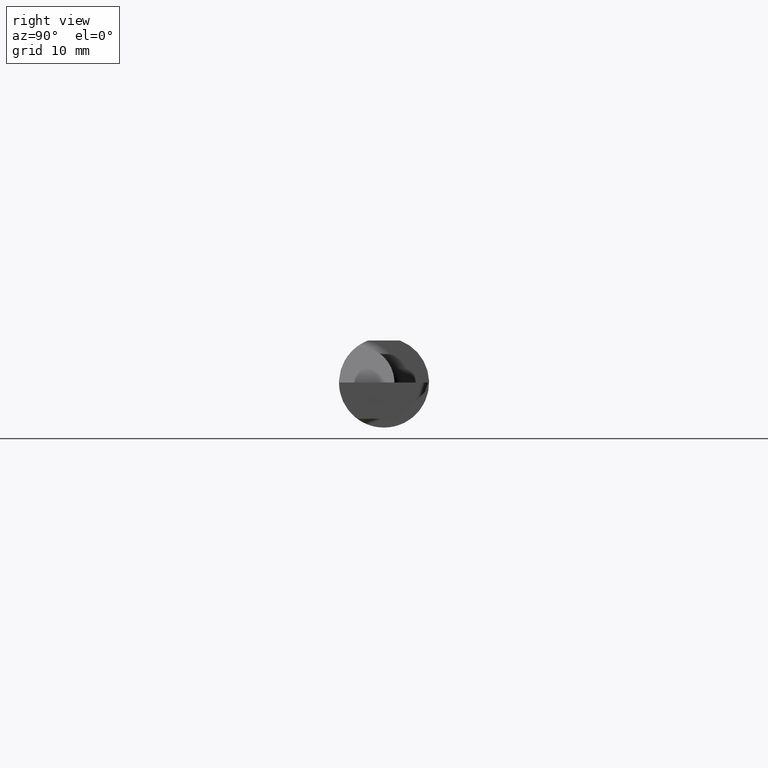
[diagram: clean part render]
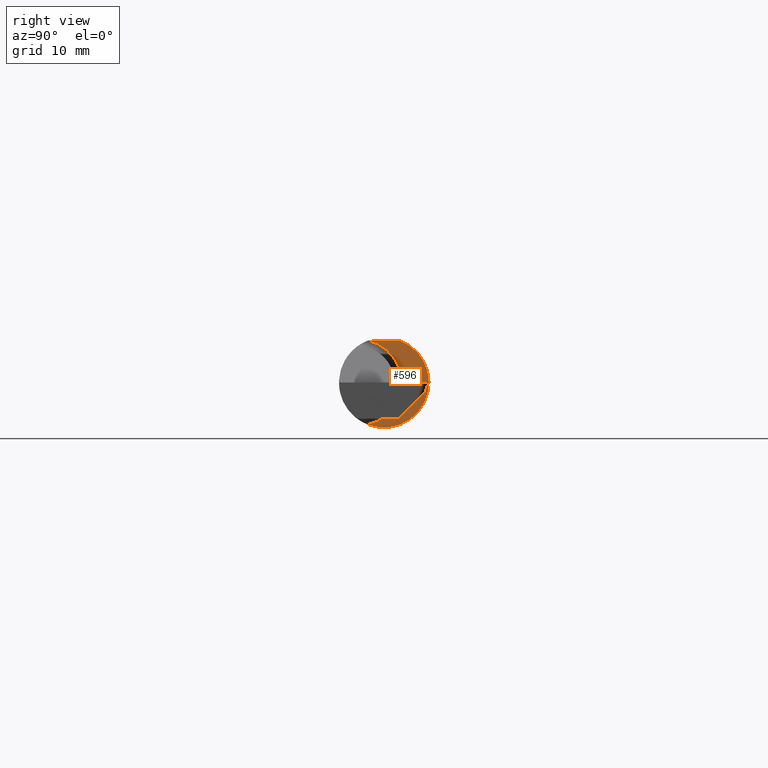
[diagram: same view with one face highlighted and labeled with its STEP entity id]
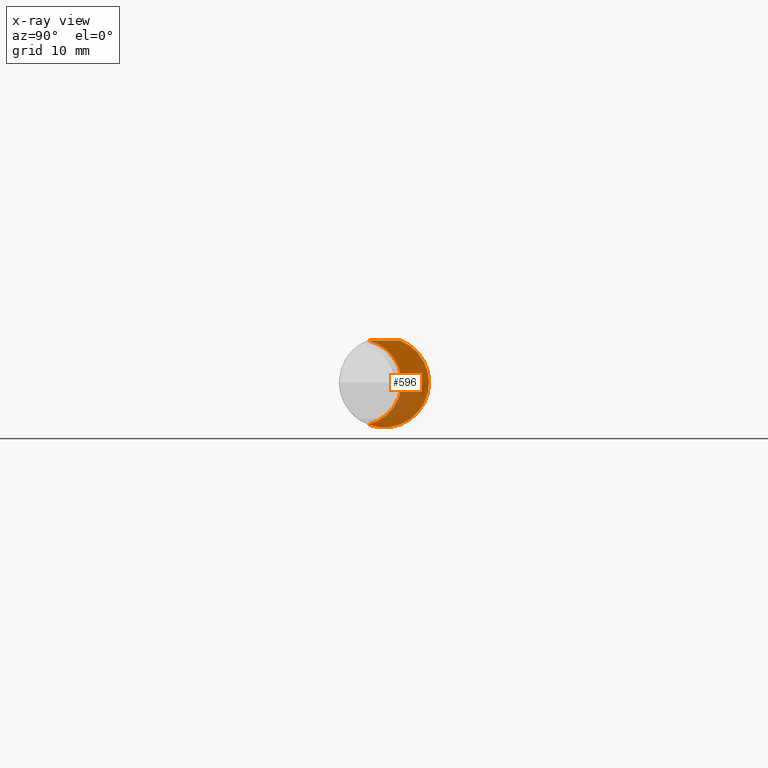
[diagram: x-ray of the same camera — body ghosted, the highlighted face saturated]
A machine part, right view. The second image highlights one B-rep face of the part: STEP entity #596.
The next image is the same camera in x-ray: the body ghosted, the highlighted face saturated — about 30% of this face is hidden behind the body in this view.
In plain terms, the highlighted planar face has unit normal (1, 0, 0).
Its self-contained STEP definition (entity closure, byte-faithful):
#78 = DIRECTION ( 'NONE',  ( 1.000000000000000000, 0.000000000000000000, 0.000000000000000000 ) ) ;
#94 = DIRECTION ( 'NONE',  ( 0.000000000000000000, 0.000000000000000000, -1.000000000000000000 ) ) ;
#136 = CARTESIAN_POINT ( 'NONE',  ( 1.699999999999999956, -0.05502817059483729872, -0.1460791239054556601 ) ) ;
#193 = DIRECTION ( 'NONE',  ( 1.000000000000000000, 0.000000000000000000, 0.000000000000000000 ) ) ;
#202 = EDGE_CURVE ( 'NONE', #338, #737, #249, .T. ) ;
#205 = ORIENTED_EDGE ( 'NONE', *, *, #508, .T. ) ;
#218 = CIRCLE ( 'NONE', #659, 0.1560999999999999888 ) ;
#231 = ORIENTED_EDGE ( 'NONE', *, *, #364, .T. ) ;
#249 = CIRCLE ( 'NONE', #738, 0.1499999999999999667 ) ;
#259 = DIRECTION ( 'NONE',  ( 0.000000000000000000, 0.000000000000000000, -1.000000000000000000 ) ) ;
#294 = AXIS2_PLACEMENT_3D ( 'NONE', #494, #193, #259 ) ;
#298 = LINE ( 'NONE', #416, #573 ) ;
#328 = ORIENTED_EDGE ( 'NONE', *, *, #202, .T. ) ;
#330 = CIRCLE ( 'NONE', #394, 0.1560999999999999888 ) ;
#332 = CARTESIAN_POINT ( 'NONE',  ( 1.699999999999999956, -0.08910000000000001252, 0.000000000000000000 ) ) ;
#338 = VERTEX_POINT ( 'NONE', #702 ) ;
#351 = CARTESIAN_POINT ( 'NONE',  ( 1.699999999999999956, 0.000000000000000000, 0.000000000000000000 ) ) ;
#364 = EDGE_CURVE ( 'NONE', #501, #338, #218, .T. ) ;
#394 = AXIS2_PLACEMENT_3D ( 'NONE', #351, #783, #409 ) ;
#409 = DIRECTION ( 'NONE',  ( 0.000000000000000000, 0.000000000000000000, -1.000000000000000000 ) ) ;
#416 = CARTESIAN_POINT ( 'NONE',  ( 1.699999999999999956, 0.1560999999999999888, 0.1460999999999998689 ) ) ;
#425 = EDGE_CURVE ( 'NONE', #501, #587, #298, .T. ) ;
#494 = CARTESIAN_POINT ( 'NONE',  ( 1.699999999999999956, 0.1560999999999998777, 0.000000000000000000 ) ) ;
#501 = VERTEX_POINT ( 'NONE', #528 ) ;
#508 = EDGE_CURVE ( 'NONE', #737, #587, #330, .T. ) ;
#528 = CARTESIAN_POINT ( 'NONE',  ( 1.699999999999999956, -0.05497272050753934658, 0.1460999999999998689 ) ) ;
#548 = FACE_OUTER_BOUND ( 'NONE', #699, .T. ) ;
#573 = VECTOR ( 'NONE', #774, 39.37007874015748143 ) ;
#577 = DIRECTION ( 'NONE',  ( -1.000000000000000000, -0.000000000000000000, -0.000000000000000000 ) ) ;
#587 = VERTEX_POINT ( 'NONE', #805 ) ;
#596 = ADVANCED_FACE ( 'NONE', ( #548 ), #603, .T. ) ;
#603 = PLANE ( 'NONE',  #294 ) ;
#646 = CARTESIAN_POINT ( 'NONE',  ( 1.699999999999999956, 0.000000000000000000, 0.000000000000000000 ) ) ;
#659 = AXIS2_PLACEMENT_3D ( 'NONE', #646, #78, #94 ) ;
#699 = EDGE_LOOP ( 'NONE', ( #205, #756, #231, #328 ) ) ;
#702 = CARTESIAN_POINT ( 'NONE',  ( 1.699999999999999956, -0.05502817059483729872, 0.1460791239054556601 ) ) ;
#737 = VERTEX_POINT ( 'NONE', #136 ) ;
#738 = AXIS2_PLACEMENT_3D ( 'NONE', #332, #577, #749 ) ;
#749 = DIRECTION ( 'NONE',  ( 0.000000000000000000, 0.000000000000000000, 1.000000000000000000 ) ) ;
#756 = ORIENTED_EDGE ( 'NONE', *, *, #425, .F. ) ;
#774 = DIRECTION ( 'NONE',  ( 0.000000000000000000, 1.000000000000000000, 0.000000000000000000 ) ) ;
#783 = DIRECTION ( 'NONE',  ( 1.000000000000000000, 0.000000000000000000, 0.000000000000000000 ) ) ;
#805 = CARTESIAN_POINT ( 'NONE',  ( 1.699999999999999956, 0.05497272050753933964, 0.1460999999999998689 ) ) ;